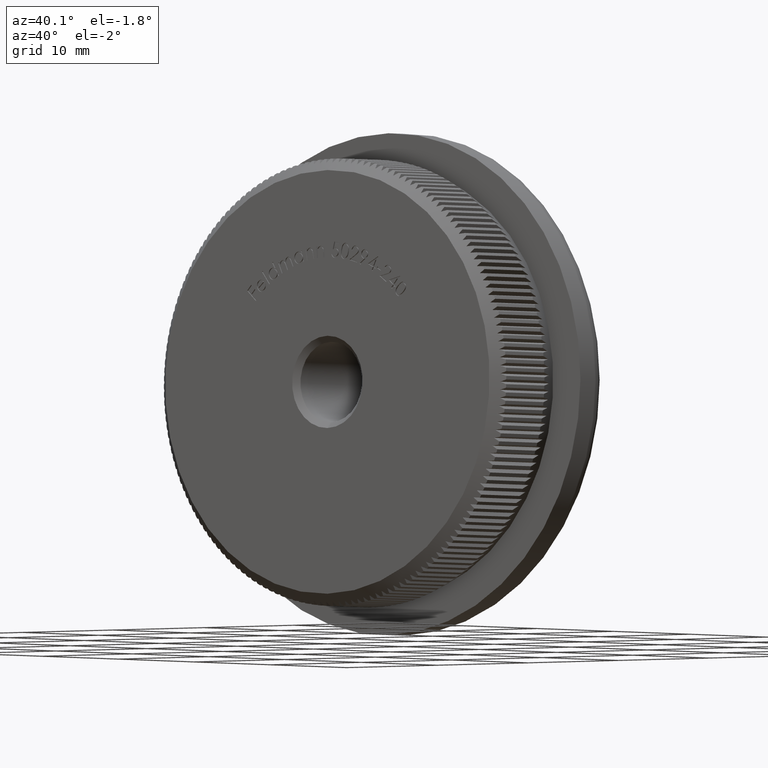
[diagram: clean part render]
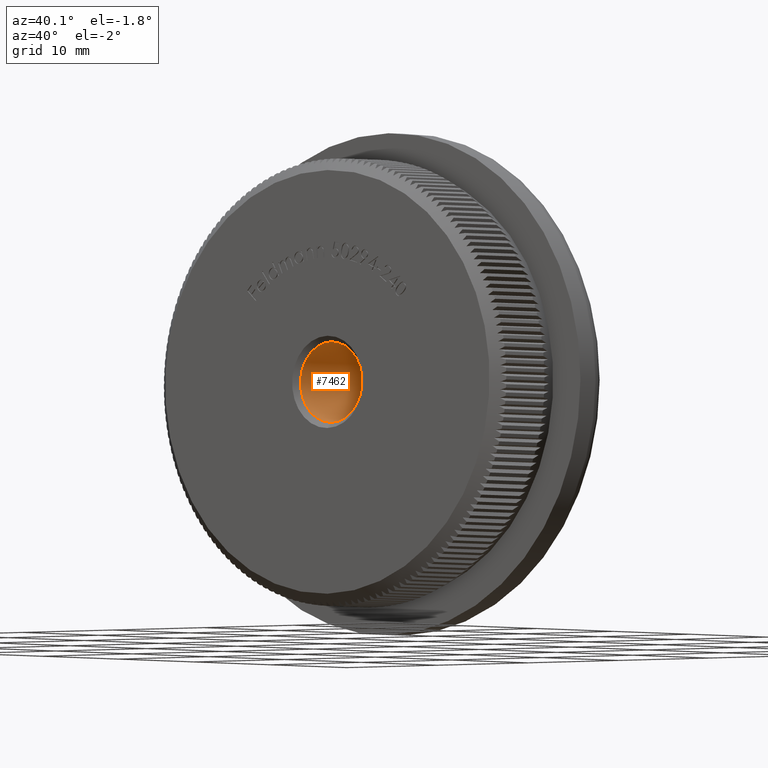
[diagram: same view with one face highlighted and labeled with its STEP entity id]
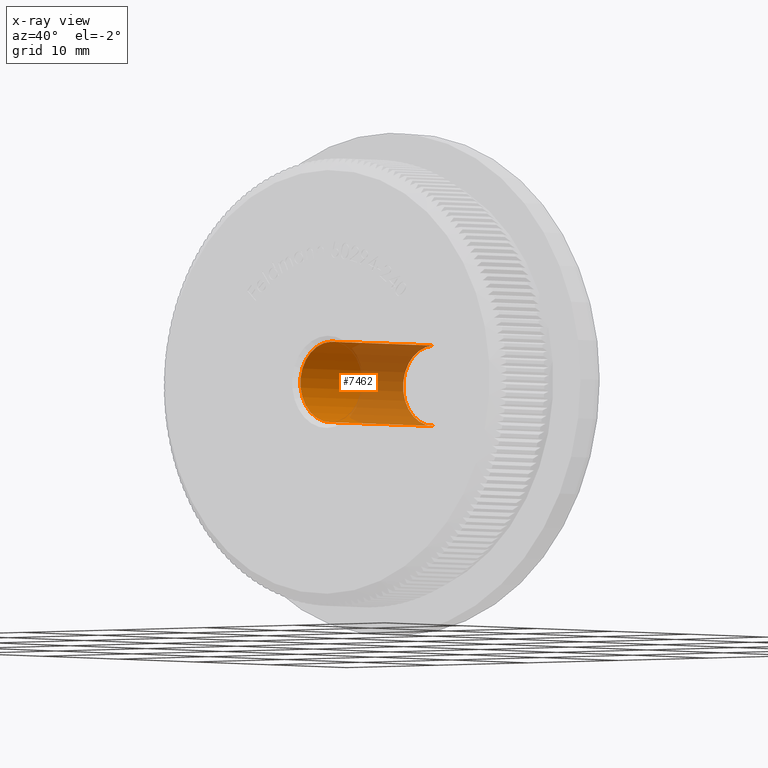
[diagram: x-ray of the same camera — body ghosted, the highlighted face saturated]
A machine part, auxiliary view. The second image highlights one B-rep face of the part: STEP entity #7462.
The next image is the same camera in x-ray: the body ghosted, the highlighted face saturated — about 51% of this face is hidden behind the body in this view.
In plain terms, the highlighted cylindrical surface (partial cylindrical patch) has radius 3.4 mm, axis along (-0, -1, -0).
Its self-contained STEP definition (entity closure, byte-faithful):
#48 = CIRCLE ( 'NONE', #18483, 3.399999999999995500 ) ;
#161 = CARTESIAN_POINT ( 'NONE',  ( 0.0000000000000000000, 0.0000000000000000000, -3.399999999999995500 ) ) ;
#1737 = CARTESIAN_POINT ( 'NONE',  ( 0.0000000000000000000, 0.0000000000000000000, 0.0000000000000000000 ) ) ;
#2092 = DIRECTION ( 'NONE',  ( 0.0000000000000000000, 1.000000000000000000, 0.0000000000000000000 ) ) ;
#4149 = DIRECTION ( 'NONE',  ( 0.0000000000000000000, 0.0000000000000000000, 1.000000000000000000 ) ) ;
#5940 = CYLINDRICAL_SURFACE ( 'NONE', #26667, 3.399999999999995500 ) ;
#6742 = CARTESIAN_POINT ( 'NONE',  ( 4.163799117100995600E-016, 0.4999999999999891800, 3.399999999999995500 ) ) ;
#6904 = CARTESIAN_POINT ( 'NONE',  ( 4.163799117100995600E-016, 0.0000000000000000000, 3.399999999999995500 ) ) ;
#7439 = ORIENTED_EDGE ( 'NONE', *, *, #20941, .F. ) ;
#7462 = ADVANCED_FACE ( 'NONE', ( #25242 ), #5940, .F. ) ;
#7483 = DIRECTION ( 'NONE',  ( -0.0000000000000000000, -1.000000000000000000, -0.0000000000000000000 ) ) ;
#7963 = ORIENTED_EDGE ( 'NONE', *, *, #26686, .T. ) ;
#9259 = AXIS2_PLACEMENT_3D ( 'NONE', #18470, #2092, #4149 ) ;
#10728 = DIRECTION ( 'NONE',  ( 0.0000000000000000000, -1.000000000000000000, 0.0000000000000000000 ) ) ;
#11079 = VECTOR ( 'NONE', #21351, 1000.000000000000000 ) ;
#13156 = CARTESIAN_POINT ( 'NONE',  ( 4.163799117100995600E-016, 13.95425291678296300, 3.399999999999995500 ) ) ;
#15683 = CARTESIAN_POINT ( 'NONE',  ( 0.0000000000000000000, 0.4999999999999891800, 0.0000000000000000000 ) ) ;
#15915 = VERTEX_POINT ( 'NONE', #6742 ) ;
#18221 = LINE ( 'NONE', #161, #23782 ) ;
#18278 = VERTEX_POINT ( 'NONE', #22285 ) ;
#18470 = CARTESIAN_POINT ( 'NONE',  ( 0.0000000000000000000, 13.95425291678296300, 0.0000000000000000000 ) ) ;
#18483 = AXIS2_PLACEMENT_3D ( 'NONE', #15683, #10728, #19976 ) ;
#19976 = DIRECTION ( 'NONE',  ( 0.0000000000000000000, 0.0000000000000000000, -1.000000000000000000 ) ) ;
#20689 = DIRECTION ( 'NONE',  ( -0.0000000000000000000, -1.000000000000000000, -0.0000000000000000000 ) ) ;
#20719 = LINE ( 'NONE', #6904, #11079 ) ;
#20941 = EDGE_CURVE ( 'NONE', #18278, #30266, #18221, .T. ) ;
#21351 = DIRECTION ( 'NONE',  ( -0.0000000000000000000, -1.000000000000000000, -0.0000000000000000000 ) ) ;
#21394 = EDGE_CURVE ( 'NONE', #15915, #30266, #48, .T. ) ;
#22285 = CARTESIAN_POINT ( 'NONE',  ( 0.0000000000000000000, 13.95425291678296300, -3.399999999999995500 ) ) ;
#22750 = ORIENTED_EDGE ( 'NONE', *, *, #21394, .T. ) ;
#23615 = CIRCLE ( 'NONE', #9259, 3.399999999999995500 ) ;
#23782 = VECTOR ( 'NONE', #7483, 1000.000000000000000 ) ;
#24092 = EDGE_CURVE ( 'NONE', #24992, #15915, #20719, .T. ) ;
#24992 = VERTEX_POINT ( 'NONE', #13156 ) ;
#25242 = FACE_OUTER_BOUND ( 'NONE', #29628, .T. ) ;
#25449 = DIRECTION ( 'NONE',  ( 0.0000000000000000000, 0.0000000000000000000, -1.000000000000000000 ) ) ;
#25687 = ORIENTED_EDGE ( 'NONE', *, *, #24092, .T. ) ;
#26667 = AXIS2_PLACEMENT_3D ( 'NONE', #1737, #20689, #25449 ) ;
#26686 = EDGE_CURVE ( 'NONE', #18278, #24992, #23615, .T. ) ;
#28056 = CARTESIAN_POINT ( 'NONE',  ( 0.0000000000000000000, 0.4999999999999891800, -3.399999999999995500 ) ) ;
#29628 = EDGE_LOOP ( 'NONE', ( #7963, #25687, #22750, #7439 ) ) ;
#30266 = VERTEX_POINT ( 'NONE', #28056 ) ;